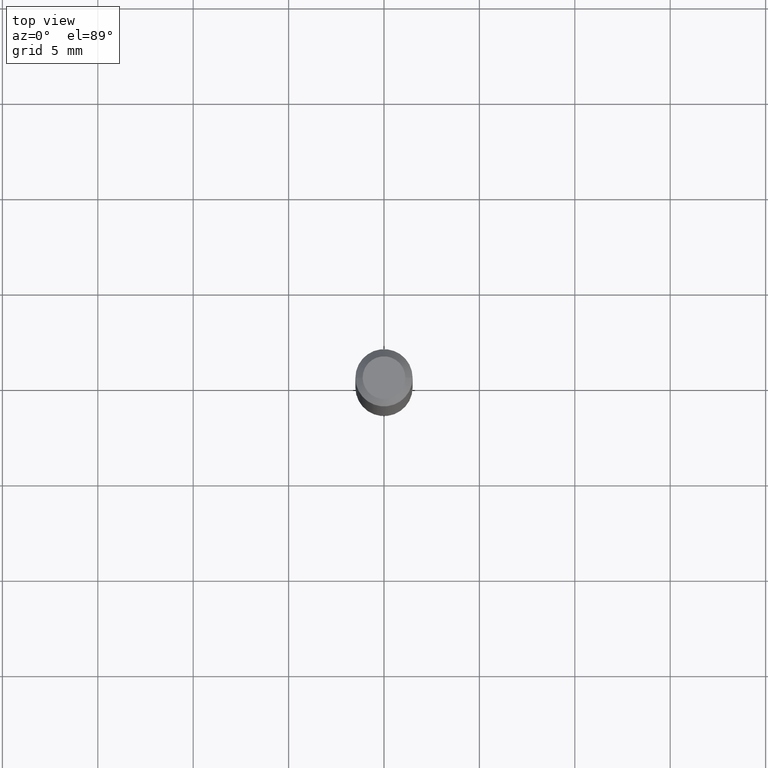
[diagram: clean part render]
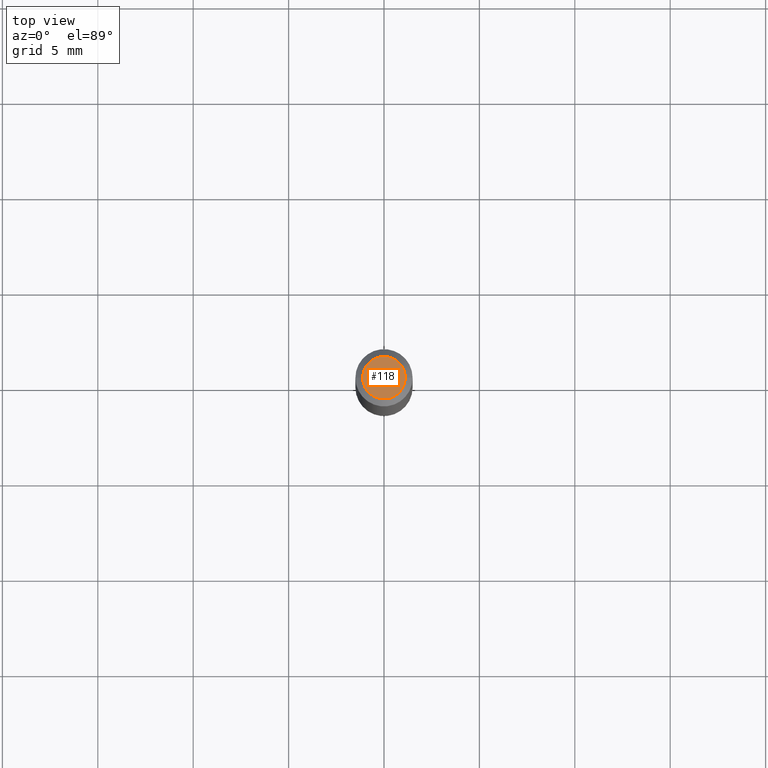
[diagram: same view with one face highlighted and labeled with its STEP entity id]
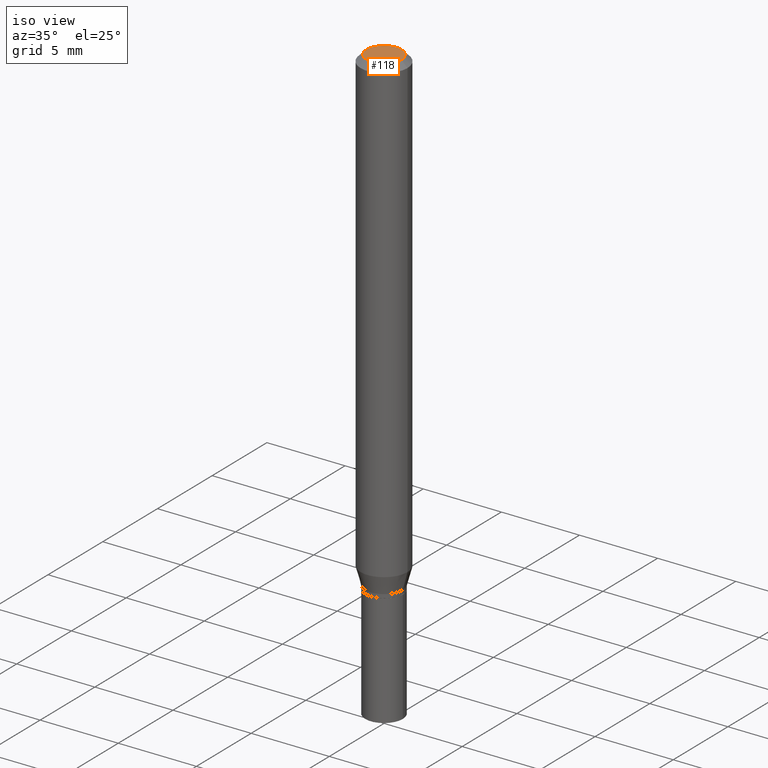
[diagram: same view with one face highlighted and labeled with its STEP entity id]
A machine part, top view. The second image highlights one B-rep face of the part: STEP entity #118.
A second angle (iso view) of the same face is appended — the face is thin or edge-on in the first view.
In plain terms, the highlighted planar face has unit normal (0, -0, -1).
Its self-contained STEP definition (entity closure, byte-faithful):
#1 = EDGE_CURVE ( 'NONE', #125, #414, #211, .T. ) ;
#20 = PLANE ( 'NONE',  #309 ) ;
#34 = DIRECTION ( 'NONE',  ( 2.438088387897960049E-29, -3.491481338843145188E-15, -1.000000000000000000 ) ) ;
#45 = DIRECTION ( 'NONE',  ( -2.445468806185136597E-29, 3.491481338843145583E-15, 1.000000000000000000 ) ) ;
#56 = DIRECTION ( 'NONE',  ( 1.000000000000000000, -6.982962677686265922E-15, 4.888540261209747396E-29 ) ) ;
#67 = FACE_OUTER_BOUND ( 'NONE', #342, .T. ) ;
#90 = CARTESIAN_POINT ( 'NONE',  ( 3.075995059520799729E-16, 0.04404999999999999888, -2.583469029759998662E-16 ) ) ;
#118 = ADVANCED_FACE ( 'NONE', ( #67 ), #20, .F. ) ;
#120 = DIRECTION ( 'NONE',  ( 1.000000000000000000, -6.982962677686265922E-15, 4.888540261209747396E-29 ) ) ;
#121 = CIRCLE ( 'NONE', #464, 0.04404999999999999888 ) ;
#125 = VERTEX_POINT ( 'NONE', #293 ) ;
#211 = CIRCLE ( 'NONE', #337, 0.04404999999999999888 ) ;
#277 = DIRECTION ( 'NONE',  ( -2.445468806185136597E-29, 3.491481338843145583E-15, 1.000000000000000000 ) ) ;
#280 = EDGE_CURVE ( 'NONE', #414, #125, #121, .T. ) ;
#293 = CARTESIAN_POINT ( 'NONE',  ( -0.04404999999999999888, 3.337856159934030687E-16, -2.090942999999208688E-16 ) ) ;
#296 = ORIENTED_EDGE ( 'NONE', *, *, #280, .T. ) ;
#309 = AXIS2_PLACEMENT_3D ( 'NONE', #90, #34, #387 ) ;
#337 = AXIS2_PLACEMENT_3D ( 'NONE', #415, #277, #56 ) ;
#342 = EDGE_LOOP ( 'NONE', ( #364, #296 ) ) ;
#364 = ORIENTED_EDGE ( 'NONE', *, *, #1, .T. ) ;
#387 = DIRECTION ( 'NONE',  ( -1.000000000000000000, 6.982962677686265922E-15, -4.876176775795935793E-29 ) ) ;
#414 = VERTEX_POINT ( 'NONE', #420 ) ;
#415 = CARTESIAN_POINT ( 'NONE',  ( 5.113335882009178277E-45, -7.300488465081862281E-31, -2.090942999999186255E-16 ) ) ;
#420 = CARTESIAN_POINT ( 'NONE',  ( 0.04404999999999999888, -3.798447818264464023E-16, -2.090942999999162343E-16 ) ) ;
#448 = CARTESIAN_POINT ( 'NONE',  ( 5.113335882009178277E-45, -7.300488465081862281E-31, -2.090942999999186255E-16 ) ) ;
#464 = AXIS2_PLACEMENT_3D ( 'NONE', #448, #45, #120 ) ;